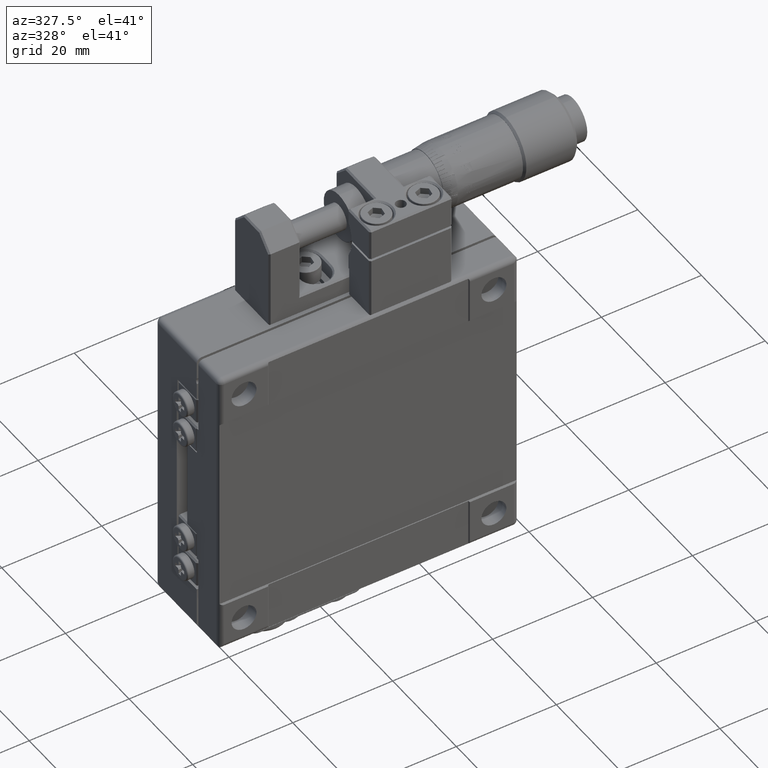
[diagram: clean part render]
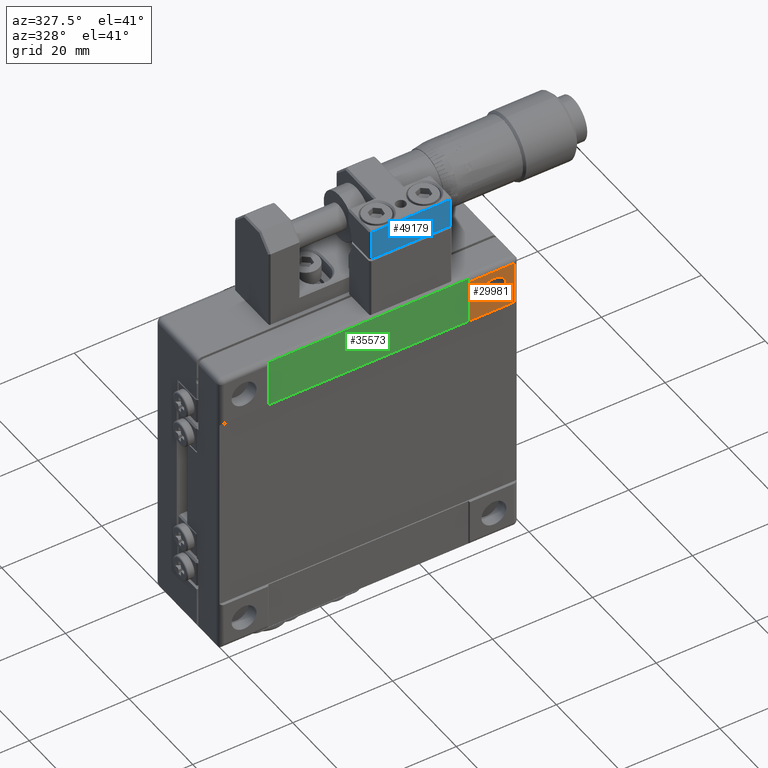
[diagram: same view with three faces highlighted in distinct colors, each labeled with its STEP entity id]
A machine part, auxiliary view with three faces highlighted in distinct colors.
Their STEP definitions:

[orange] entity #29981 — the highlighted planar face has unit normal (0, 1, -0).
#906 = AXIS2_PLACEMENT_3D ( 'NONE', #49762, #29706, #28893 ) ;
#1608 = EDGE_CURVE ( 'NONE', #4299, #6962, #26713, .T. ) ;
#1814 = CARTESIAN_POINT ( 'NONE',  ( 30.37353433835844996, -10.39363484087102130, 24.64999999999999858 ) ) ;
#2132 = VECTOR ( 'NONE', #27496, 1000.000000000000000 ) ;
#3154 = LINE ( 'NONE', #24873, #11695 ) ;
#4299 = VERTEX_POINT ( 'NONE', #53466 ) ;
#4835 = VERTEX_POINT ( 'NONE', #30102 ) ;
#5264 = ORIENTED_EDGE ( 'NONE', *, *, #47151, .T. ) ;
#6279 = DIRECTION ( 'NONE',  ( 0.000000000000000000, 0.000000000000000000, 1.000000000000000000 ) ) ;
#6505 = EDGE_CURVE ( 'NONE', #34742, #4835, #43940, .T. ) ;
#6962 = VERTEX_POINT ( 'NONE', #44413 ) ;
#7683 = CIRCLE ( 'NONE', #50367, 2.499999999999998668 ) ;
#8813 = FACE_BOUND ( 'NONE', #49994, .T. ) ;
#10680 = CARTESIAN_POINT ( 'NONE',  ( 30.37353433835844996, -10.39363484087102130, 20.29999999999999716 ) ) ;
#10774 = CARTESIAN_POINT ( 'NONE',  ( 21.57353433835844569, -10.39363484087102130, 20.29999999999999716 ) ) ;
#11695 = VECTOR ( 'NONE', #23780, 1000.000000000000000 ) ;
#13242 = VERTEX_POINT ( 'NONE', #10680 ) ;
#14305 = CARTESIAN_POINT ( 'NONE',  ( 30.37353433835844996, -10.39363484087102130, 29.00000000000000000 ) ) ;
#14920 = LINE ( 'NONE', #1814, #20771 ) ;
#17485 = CARTESIAN_POINT ( 'NONE',  ( 21.57353433835844569, -10.39363484087102130, 30.00000000000000000 ) ) ;
#17777 = CARTESIAN_POINT ( 'NONE',  ( 26.47353433835844783, -10.39363484087102130, 29.00000000000000000 ) ) ;
#18813 = DIRECTION ( 'NONE',  ( 0.000000000000000000, 4.678643490962819868E-17, 1.000000000000000000 ) ) ;
#18900 = VECTOR ( 'NONE', #38635, 1000.000000000000000 ) ;
#20490 = ORIENTED_EDGE ( 'NONE', *, *, #32748, .T. ) ;
#20771 = VECTOR ( 'NONE', #18813, 1000.000000000000000 ) ;
#22192 = PLANE ( 'NONE',  #49269 ) ;
#23780 = DIRECTION ( 'NONE',  ( 1.000000000000000000, 0.000000000000000000, 0.000000000000000000 ) ) ;
#24873 = CARTESIAN_POINT ( 'NONE',  ( 31.37353433835844640, -10.39363484087102130, 20.29999999999999716 ) ) ;
#26032 = EDGE_CURVE ( 'NONE', #53632, #13242, #3154, .T. ) ;
#26713 = CIRCLE ( 'NONE', #906, 2.499999999999998668 ) ;
#26903 = FACE_OUTER_BOUND ( 'NONE', #54889, .T. ) ;
#27472 = CARTESIAN_POINT ( 'NONE',  ( 26.37353433835844996, -10.39363484087104084, 25.00000000000000000 ) ) ;
#27496 = DIRECTION ( 'NONE',  ( -1.000000000000000000, 0.000000000000000000, 0.000000000000000000 ) ) ;
#28893 = DIRECTION ( 'NONE',  ( 0.000000000000000000, 0.000000000000000000, 1.000000000000000000 ) ) ;
#29706 = DIRECTION ( 'NONE',  ( 0.000000000000000000, 1.000000000000000000, 0.000000000000000000 ) ) ;
#29981 = ADVANCED_FACE ( 'NONE', ( #8813, #26903 ), #22192, .F. ) ;
#30102 = CARTESIAN_POINT ( 'NONE',  ( 21.57353433835844569, -10.39363484087102130, 29.00000000000000000 ) ) ;
#30253 = DIRECTION ( 'NONE',  ( 0.000000000000000000, -1.069546691927972058E-17, -1.000000000000000000 ) ) ;
#32675 = ORIENTED_EDGE ( 'NONE', *, *, #26032, .T. ) ;
#32748 = EDGE_CURVE ( 'NONE', #6962, #4299, #7683, .T. ) ;
#33645 = ORIENTED_EDGE ( 'NONE', *, *, #1608, .T. ) ;
#34742 = VERTEX_POINT ( 'NONE', #14305 ) ;
#38085 = LINE ( 'NONE', #17485, #18900 ) ;
#38635 = DIRECTION ( 'NONE',  ( 0.000000000000000000, -1.069546691927972058E-17, -1.000000000000000000 ) ) ;
#38904 = DIRECTION ( 'NONE',  ( 0.000000000000000000, 1.000000000000000000, -1.069546691927972058E-17 ) ) ;
#40471 = ORIENTED_EDGE ( 'NONE', *, *, #6505, .T. ) ;
#43078 = CARTESIAN_POINT ( 'NONE',  ( 31.37353433835844640, -10.39363484087102130, 30.00000000000000000 ) ) ;
#43603 = EDGE_CURVE ( 'NONE', #13242, #34742, #14920, .T. ) ;
#43940 = LINE ( 'NONE', #17777, #2132 ) ;
#44413 = CARTESIAN_POINT ( 'NONE',  ( 26.37353433835844996, -10.39363484087104084, 22.50000000000000000 ) ) ;
#44449 = DIRECTION ( 'NONE',  ( 0.000000000000000000, 1.000000000000000000, 0.000000000000000000 ) ) ;
#47151 = EDGE_CURVE ( 'NONE', #4835, #53632, #38085, .T. ) ;
#49269 = AXIS2_PLACEMENT_3D ( 'NONE', #43078, #38904, #30253 ) ;
#49762 = CARTESIAN_POINT ( 'NONE',  ( 26.37353433835844996, -10.39363484087104084, 25.00000000000000000 ) ) ;
#49994 = EDGE_LOOP ( 'NONE', ( #33645, #20490 ) ) ;
#50367 = AXIS2_PLACEMENT_3D ( 'NONE', #27472, #44449, #6279 ) ;
#53466 = CARTESIAN_POINT ( 'NONE',  ( 26.37353433835844996, -10.39363484087104084, 27.50000000000000000 ) ) ;
#53632 = VERTEX_POINT ( 'NONE', #10774 ) ;
#54889 = EDGE_LOOP ( 'NONE', ( #32675, #54905, #40471, #5264 ) ) ;
#54905 = ORIENTED_EDGE ( 'NONE', *, *, #43603, .T. ) ;

[blue] entity #49179 — the highlighted planar face has unit normal (-0, 1, 0).
#472 = DIRECTION ( 'NONE',  ( 0.000000000000000000, 0.000000000000000000, 1.000000000000000000 ) ) ;
#1791 = EDGE_CURVE ( 'NONE', #18614, #7218, #43355, .T. ) ;
#4377 = LINE ( 'NONE', #38623, #32092 ) ;
#7218 = VERTEX_POINT ( 'NONE', #44359 ) ;
#8106 = ORIENTED_EDGE ( 'NONE', *, *, #1791, .T. ) ;
#10850 = DIRECTION ( 'NONE',  ( -1.000000000000000000, 0.000000000000000000, 0.000000000000000000 ) ) ;
#12063 = FACE_OUTER_BOUND ( 'NONE', #29563, .T. ) ;
#12163 = VERTEX_POINT ( 'NONE', #35972 ) ;
#15971 = DIRECTION ( 'NONE',  ( 1.000000000000000000, 0.000000000000000000, 0.000000000000000000 ) ) ;
#18199 = ORIENTED_EDGE ( 'NONE', *, *, #39719, .T. ) ;
#18614 = VERTEX_POINT ( 'NONE', #34557 ) ;
#20577 = LINE ( 'NONE', #46474, #45662 ) ;
#20698 = DIRECTION ( 'NONE',  ( -0.000000000000000000, 1.000000000000000000, 0.000000000000000000 ) ) ;
#25038 = DIRECTION ( 'NONE',  ( 1.000000000000000000, 0.000000000000000000, 1.540743955509784919E-33 ) ) ;
#28575 = EDGE_CURVE ( 'NONE', #7218, #44432, #20577, .T. ) ;
#28911 = CARTESIAN_POINT ( 'NONE',  ( 18.07353433835844925, -9.893634840871021296, 42.75000000000000000 ) ) ;
#28980 = LINE ( 'NONE', #45132, #38582 ) ;
#29563 = EDGE_LOOP ( 'NONE', ( #8106, #49869, #18199, #33980 ) ) ;
#32092 = VECTOR ( 'NONE', #472, 1000.000000000000000 ) ;
#33980 = ORIENTED_EDGE ( 'NONE', *, *, #44130, .T. ) ;
#34557 = CARTESIAN_POINT ( 'NONE',  ( 2.173534338358459994, -9.893634840871021296, 48.70000000000000284 ) ) ;
#34975 = DIRECTION ( 'NONE',  ( 0.000000000000000000, 0.000000000000000000, -1.000000000000000000 ) ) ;
#35972 = CARTESIAN_POINT ( 'NONE',  ( 18.07353433835844925, -9.893634840871021296, 48.70000000000000284 ) ) ;
#38582 = VECTOR ( 'NONE', #10850, 1000.000000000000000 ) ;
#38623 = CARTESIAN_POINT ( 'NONE',  ( 18.07353433835844925, -9.893634840871021296, 49.00000000000000000 ) ) ;
#39719 = EDGE_CURVE ( 'NONE', #44432, #12163, #4377, .T. ) ;
#43355 = LINE ( 'NONE', #43612, #51025 ) ;
#43612 = CARTESIAN_POINT ( 'NONE',  ( 2.173534338358459994, -9.893634840871021296, 49.00000000000000000 ) ) ;
#43790 = AXIS2_PLACEMENT_3D ( 'NONE', #54099, #20698, #15971 ) ;
#44130 = EDGE_CURVE ( 'NONE', #12163, #18614, #28980, .T. ) ;
#44359 = CARTESIAN_POINT ( 'NONE',  ( 2.173534338358459994, -9.893634840871021296, 42.75000000000000000 ) ) ;
#44432 = VERTEX_POINT ( 'NONE', #28911 ) ;
#45132 = CARTESIAN_POINT ( 'NONE',  ( 1.873534338358459950, -9.893634840871021296, 48.70000000000000284 ) ) ;
#45662 = VECTOR ( 'NONE', #25038, 1000.000000000000000 ) ;
#45772 = PLANE ( 'NONE',  #43790 ) ;
#46474 = CARTESIAN_POINT ( 'NONE',  ( 1.873534338358459950, -9.893634840871021296, 42.75000000000000000 ) ) ;
#49179 = ADVANCED_FACE ( 'NONE', ( #12063 ), #45772, .F. ) ;
#49869 = ORIENTED_EDGE ( 'NONE', *, *, #28575, .T. ) ;
#51025 = VECTOR ( 'NONE', #34975, 1000.000000000000000 ) ;
#54099 = CARTESIAN_POINT ( 'NONE',  ( 1.873534338358459950, -9.893634840871021296, 49.00000000000000000 ) ) ;

[green] entity #35573 — the highlighted planar face has unit normal (-0, 1, 0).
#1637 = CARTESIAN_POINT ( 'NONE',  ( -18.62646566164155360, -10.19363484087102023, -30.00000000000000000 ) ) ;
#3227 = DIRECTION ( 'NONE',  ( -1.000000000000000000, 0.000000000000000000, 0.000000000000000000 ) ) ;
#4290 = AXIS2_PLACEMENT_3D ( 'NONE', #1637, #10785, #6627 ) ;
#6627 = DIRECTION ( 'NONE',  ( 1.000000000000000000, 0.000000000000000000, 0.000000000000000000 ) ) ;
#7133 = VERTEX_POINT ( 'NONE', #29617 ) ;
#7777 = CARTESIAN_POINT ( 'NONE',  ( 31.37353433835844640, -10.19363484087102023, 20.10000000000000142 ) ) ;
#7883 = VERTEX_POINT ( 'NONE', #14293 ) ;
#9718 = FACE_OUTER_BOUND ( 'NONE', #54464, .T. ) ;
#10785 = DIRECTION ( 'NONE',  ( -0.000000000000000000, 1.000000000000000000, 0.000000000000000000 ) ) ;
#14293 = CARTESIAN_POINT ( 'NONE',  ( -18.62646566164155360, -10.19363484087102023, 29.60000000000000142 ) ) ;
#14816 = EDGE_CURVE ( 'NONE', #7133, #34468, #28655, .T. ) ;
#14921 = CARTESIAN_POINT ( 'NONE',  ( 21.37353433835844996, -10.19363484087102023, 29.60000000000000142 ) ) ;
#15023 = LINE ( 'NONE', #31992, #18911 ) ;
#15524 = ORIENTED_EDGE ( 'NONE', *, *, #36954, .T. ) ;
#15790 = ORIENTED_EDGE ( 'NONE', *, *, #27400, .F. ) ;
#16141 = CARTESIAN_POINT ( 'NONE',  ( 21.37353433835844996, -10.19363484087102023, 20.10000000000000142 ) ) ;
#18371 = PLANE ( 'NONE',  #4290 ) ;
#18911 = VECTOR ( 'NONE', #45098, 1000.000000000000000 ) ;
#21736 = ORIENTED_EDGE ( 'NONE', *, *, #52583, .T. ) ;
#23684 = VECTOR ( 'NONE', #28385, 1000.000000000000000 ) ;
#27092 = VECTOR ( 'NONE', #54882, 1000.000000000000000 ) ;
#27400 = EDGE_CURVE ( 'NONE', #7133, #7883, #15023, .T. ) ;
#28385 = DIRECTION ( 'NONE',  ( 1.000000000000000000, 0.000000000000000000, 0.000000000000000000 ) ) ;
#28655 = LINE ( 'NONE', #7777, #23684 ) ;
#28851 = CARTESIAN_POINT ( 'NONE',  ( 21.37353433835844996, -10.19363484087102023, 29.60000000000000142 ) ) ;
#29617 = CARTESIAN_POINT ( 'NONE',  ( -18.62646566164155360, -10.19363484087102023, 20.10000000000000142 ) ) ;
#30312 = VECTOR ( 'NONE', #3227, 1000.000000000000000 ) ;
#31603 = VERTEX_POINT ( 'NONE', #14921 ) ;
#31992 = CARTESIAN_POINT ( 'NONE',  ( -18.62646566164155360, -10.19363484087102023, -30.00000000000000000 ) ) ;
#34293 = LINE ( 'NONE', #42646, #27092 ) ;
#34468 = VERTEX_POINT ( 'NONE', #16141 ) ;
#35573 = ADVANCED_FACE ( 'NONE', ( #9718 ), #18371, .F. ) ;
#36954 = EDGE_CURVE ( 'NONE', #31603, #7883, #49985, .T. ) ;
#37621 = ORIENTED_EDGE ( 'NONE', *, *, #14816, .T. ) ;
#42646 = CARTESIAN_POINT ( 'NONE',  ( 21.37353433835844996, -10.19363484087102023, -30.00000000000000000 ) ) ;
#45098 = DIRECTION ( 'NONE',  ( 0.000000000000000000, 0.000000000000000000, 1.000000000000000000 ) ) ;
#49985 = LINE ( 'NONE', #28851, #30312 ) ;
#52583 = EDGE_CURVE ( 'NONE', #34468, #31603, #34293, .T. ) ;
#54464 = EDGE_LOOP ( 'NONE', ( #21736, #15524, #15790, #37621 ) ) ;
#54882 = DIRECTION ( 'NONE',  ( 0.000000000000000000, 0.000000000000000000, 1.000000000000000000 ) ) ;